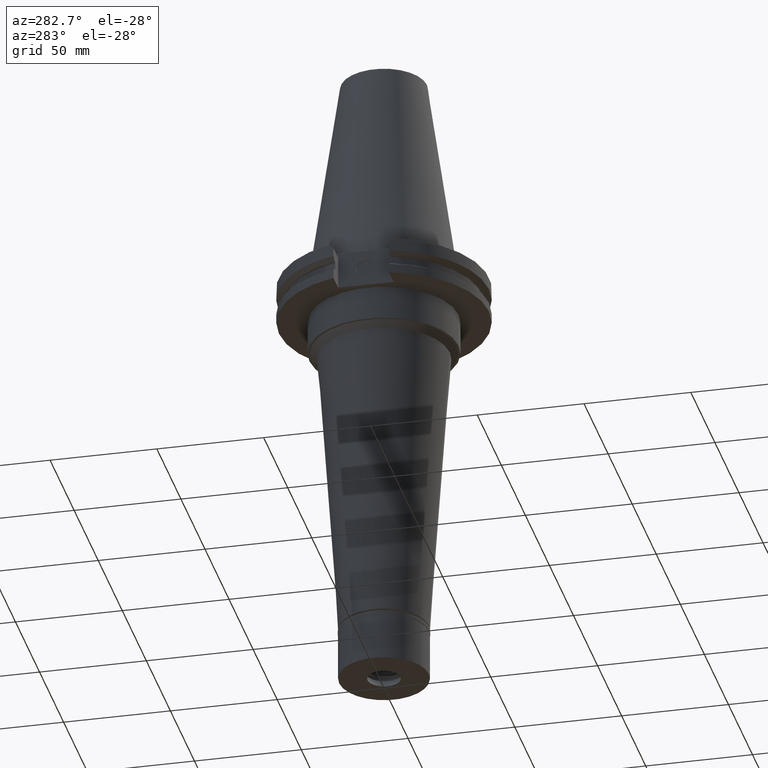
[diagram: clean part render]
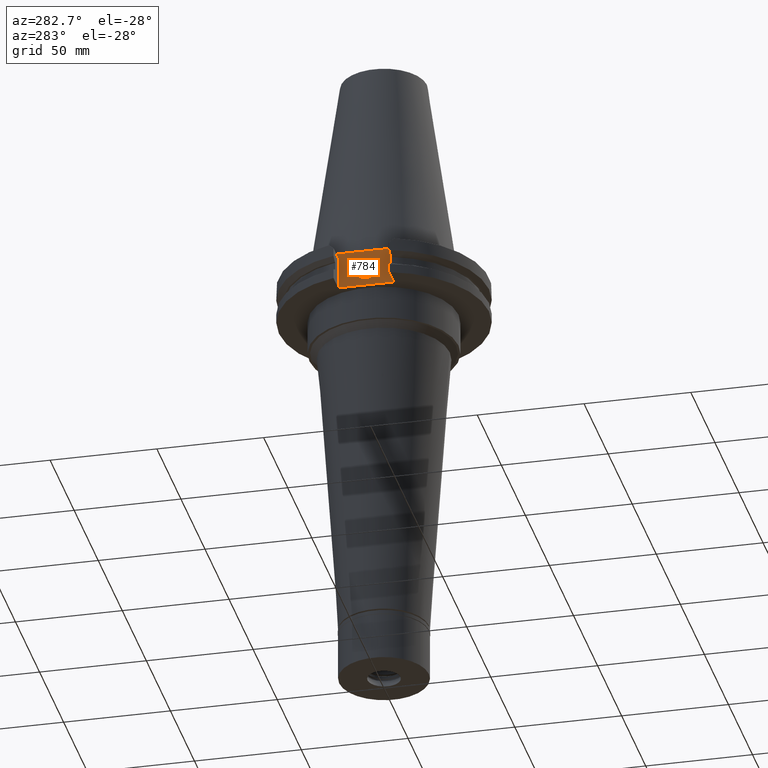
[diagram: same view with one face highlighted and labeled with its STEP entity id]
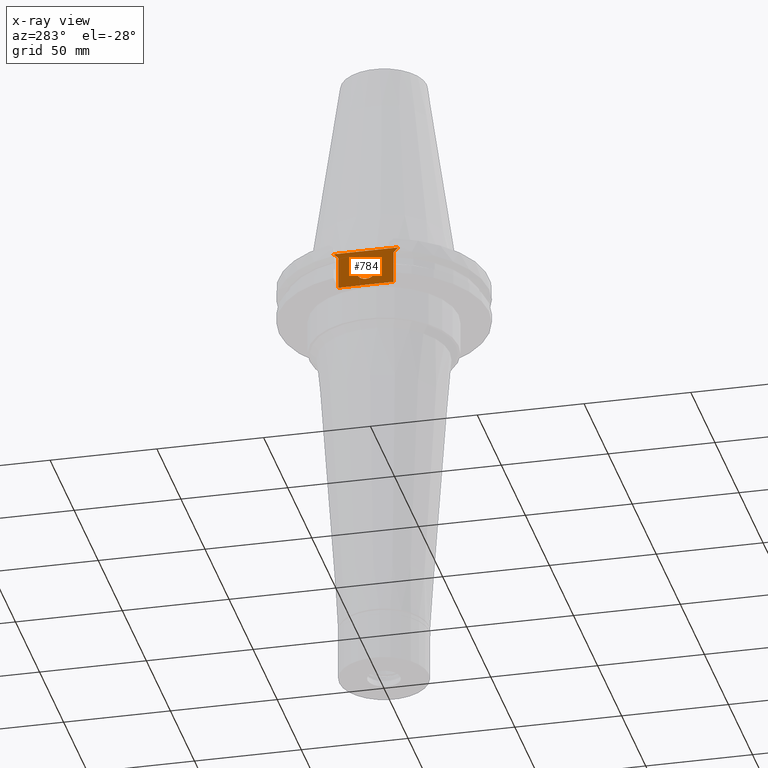
[diagram: x-ray of the same camera — body ghosted, the highlighted face saturated]
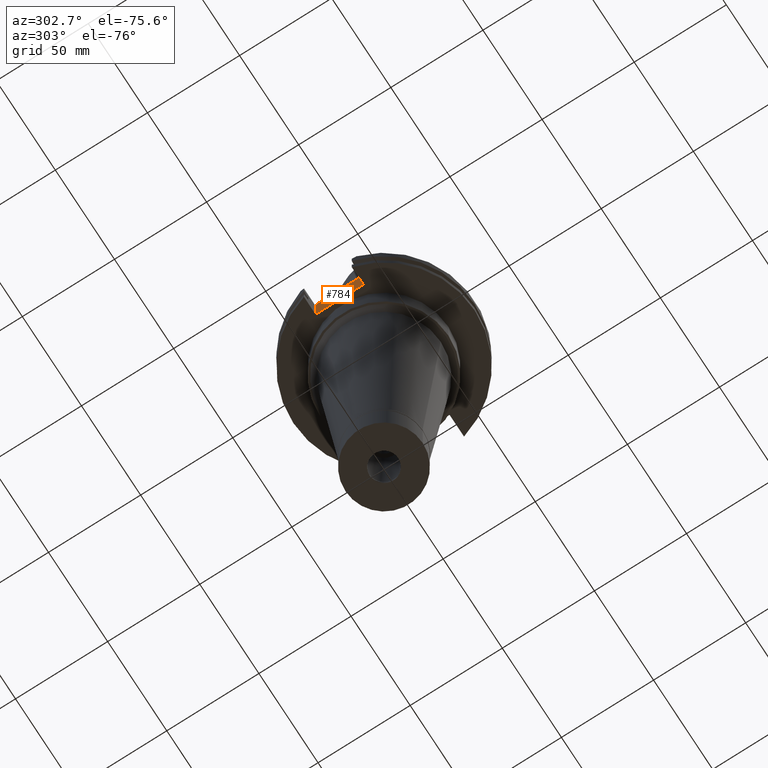
[diagram: same view with one face highlighted and labeled with its STEP entity id]
A machine part, auxiliary view. The second image highlights one B-rep face of the part: STEP entity #784.
The next image is the same camera in x-ray: the body ghosted, the highlighted face saturated — about 0% of this face is hidden behind the body in this view.
A second angle (auxiliary view) of the same face is appended — the face is thin or edge-on in the first view.
In plain terms, the highlighted planar face has unit normal (1, 0, 0).
Its self-contained STEP definition (entity closure, byte-faithful):
#8 = EDGE_LOOP ( 'NONE', ( #561, #2972 ) ) ;
#96 = CARTESIAN_POINT ( 'NONE',  ( -37.67999999999999972, 0.0000000000000000000, -15.94249999999999901 ) ) ;
#188 = VERTEX_POINT ( 'NONE', #2259 ) ;
#202 = VERTEX_POINT ( 'NONE', #235 ) ;
#235 = CARTESIAN_POINT ( 'NONE',  ( -37.67999999999999972, 15.15499999999999936, -1.500000000000000000 ) ) ;
#288 = DIRECTION ( 'NONE',  ( 0.0000000000000000000, 1.000000000000000000, 0.0000000000000000000 ) ) ;
#295 = EDGE_LOOP ( 'NONE', ( #1094, #951, #3308, #2524, #1175, #318 ) ) ;
#297 = CARTESIAN_POINT ( 'NONE',  ( -37.67999999999999972, 0.0000000000000000000, -11.18000000000000149 ) ) ;
#318 = ORIENTED_EDGE ( 'NONE', *, *, #1442, .F. ) ;
#407 = FACE_BOUND ( 'NONE', #8, .T. ) ;
#451 = DIRECTION ( 'NONE',  ( 0.0000000000000000000, 0.7071067811865474617, 0.7071067811865474617 ) ) ;
#496 = FACE_OUTER_BOUND ( 'NONE', #295, .T. ) ;
#559 = DIRECTION ( 'NONE',  ( -1.000000000000000000, 0.0000000000000000000, 0.0000000000000000000 ) ) ;
#561 = ORIENTED_EDGE ( 'NONE', *, *, #879, .F. ) ;
#604 = LINE ( 'NONE', #2407, #774 ) ;
#698 = AXIS2_PLACEMENT_3D ( 'NONE', #3082, #1260, #288 ) ;
#737 = LINE ( 'NONE', #2526, #2866 ) ;
#774 = VECTOR ( 'NONE', #1899, 1000.000000000000000 ) ;
#784 = ADVANCED_FACE ( 'NONE', ( #496, #407 ), #1433, .F. ) ;
#843 = CARTESIAN_POINT ( 'NONE',  ( -37.67999999999999972, -15.15499999999999936, -1.500000000000000000 ) ) ;
#863 = LINE ( 'NONE', #2393, #1182 ) ;
#866 = CARTESIAN_POINT ( 'NONE',  ( -37.67999999999999972, -12.95500000000000007, -19.05000000000000071 ) ) ;
#879 = EDGE_CURVE ( 'NONE', #2808, #1004, #1018, .T. ) ;
#892 = CARTESIAN_POINT ( 'NONE',  ( -37.67999999999999972, -15.15499999999999936, -1.500000000000000000 ) ) ;
#951 = ORIENTED_EDGE ( 'NONE', *, *, #2188, .F. ) ;
#970 = VERTEX_POINT ( 'NONE', #866 ) ;
#997 = DIRECTION ( 'NONE',  ( 0.0000000000000000000, 0.0000000000000000000, -1.000000000000000000 ) ) ;
#1004 = VERTEX_POINT ( 'NONE', #1879 ) ;
#1018 = CIRCLE ( 'NONE', #3345, 4.762500000000001066 ) ;
#1051 = VECTOR ( 'NONE', #2128, 1000.000000000000000 ) ;
#1062 = LINE ( 'NONE', #2849, #1070 ) ;
#1070 = VECTOR ( 'NONE', #2334, 1000.000000000000000 ) ;
#1085 = LINE ( 'NONE', #2404, #1051 ) ;
#1094 = ORIENTED_EDGE ( 'NONE', *, *, #2071, .T. ) ;
#1175 = ORIENTED_EDGE ( 'NONE', *, *, #2678, .T. ) ;
#1182 = VECTOR ( 'NONE', #1856, 1000.000000000000000 ) ;
#1225 = EDGE_CURVE ( 'NONE', #188, #202, #737, .T. ) ;
#1227 = VERTEX_POINT ( 'NONE', #2726 ) ;
#1260 = DIRECTION ( 'NONE',  ( 1.000000000000000000, 0.0000000000000000000, 0.0000000000000000000 ) ) ;
#1360 = DIRECTION ( 'NONE',  ( 0.0000000000000000000, 0.0000000000000000000, 1.000000000000000000 ) ) ;
#1433 = PLANE ( 'NONE',  #698 ) ;
#1442 = EDGE_CURVE ( 'NONE', #970, #1506, #1062, .T. ) ;
#1506 = VERTEX_POINT ( 'NONE', #2279 ) ;
#1656 = EDGE_CURVE ( 'NONE', #3271, #202, #863, .T. ) ;
#1856 = DIRECTION ( 'NONE',  ( 0.0000000000000000000, 1.000000000000000000, 0.0000000000000000000 ) ) ;
#1879 = CARTESIAN_POINT ( 'NONE',  ( -37.67999999999999972, 0.0000000000000000000, -6.417499999999999538 ) ) ;
#1899 = DIRECTION ( 'NONE',  ( 0.0000000000000000000, 0.0000000000000000000, 1.000000000000000000 ) ) ;
#2059 = EDGE_CURVE ( 'NONE', #1004, #2808, #2484, .T. ) ;
#2071 = EDGE_CURVE ( 'NONE', #970, #1227, #604, .T. ) ;
#2128 = DIRECTION ( 'NONE',  ( 0.0000000000000000000, 0.0000000000000000000, -1.000000000000000000 ) ) ;
#2188 = EDGE_CURVE ( 'NONE', #3271, #1227, #2360, .T. ) ;
#2259 = CARTESIAN_POINT ( 'NONE',  ( -37.67999999999999972, 12.95500000000000007, -3.700000000000000178 ) ) ;
#2265 = CARTESIAN_POINT ( 'NONE',  ( -37.67999999999999972, 0.0000000000000000000, -11.18000000000000149 ) ) ;
#2279 = CARTESIAN_POINT ( 'NONE',  ( -37.67999999999999972, 12.95500000000000007, -19.05000000000000071 ) ) ;
#2305 = DIRECTION ( 'NONE',  ( -1.000000000000000000, 0.0000000000000000000, 0.0000000000000000000 ) ) ;
#2334 = DIRECTION ( 'NONE',  ( 0.0000000000000000000, 1.000000000000000000, 0.0000000000000000000 ) ) ;
#2360 = LINE ( 'NONE', #843, #2702 ) ;
#2373 = AXIS2_PLACEMENT_3D ( 'NONE', #297, #559, #1360 ) ;
#2393 = CARTESIAN_POINT ( 'NONE',  ( -37.67999999999999972, -15.15499999999999936, -1.500000000000000000 ) ) ;
#2404 = CARTESIAN_POINT ( 'NONE',  ( -37.67999999999999972, 12.95500000000000007, -3.700000000000000178 ) ) ;
#2407 = CARTESIAN_POINT ( 'NONE',  ( -37.67999999999999972, -12.95500000000000007, -19.05000000000000071 ) ) ;
#2484 = CIRCLE ( 'NONE', #2373, 4.762500000000000178 ) ;
#2524 = ORIENTED_EDGE ( 'NONE', *, *, #1225, .F. ) ;
#2526 = CARTESIAN_POINT ( 'NONE',  ( -37.67999999999999972, 12.95500000000000007, -3.700000000000000178 ) ) ;
#2678 = EDGE_CURVE ( 'NONE', #188, #1506, #1085, .T. ) ;
#2702 = VECTOR ( 'NONE', #2908, 1000.000000000000114 ) ;
#2726 = CARTESIAN_POINT ( 'NONE',  ( -37.67999999999999972, -12.95500000000000007, -3.700000000000000178 ) ) ;
#2808 = VERTEX_POINT ( 'NONE', #96 ) ;
#2849 = CARTESIAN_POINT ( 'NONE',  ( -37.67999999999999972, -12.95500000000000007, -19.05000000000000071 ) ) ;
#2866 = VECTOR ( 'NONE', #451, 1000.000000000000114 ) ;
#2908 = DIRECTION ( 'NONE',  ( 0.0000000000000000000, 0.7071067811865474617, -0.7071067811865474617 ) ) ;
#2972 = ORIENTED_EDGE ( 'NONE', *, *, #2059, .F. ) ;
#3082 = CARTESIAN_POINT ( 'NONE',  ( -37.67999999999999972, 0.0000000000000000000, 0.0000000000000000000 ) ) ;
#3271 = VERTEX_POINT ( 'NONE', #892 ) ;
#3308 = ORIENTED_EDGE ( 'NONE', *, *, #1656, .T. ) ;
#3345 = AXIS2_PLACEMENT_3D ( 'NONE', #2265, #2305, #997 ) ;